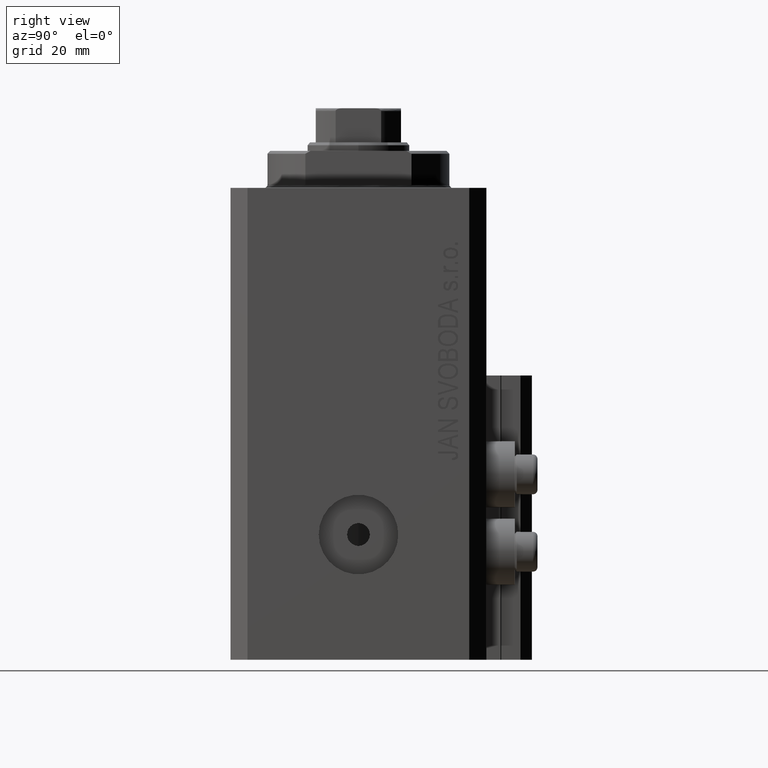
[diagram: clean part render]
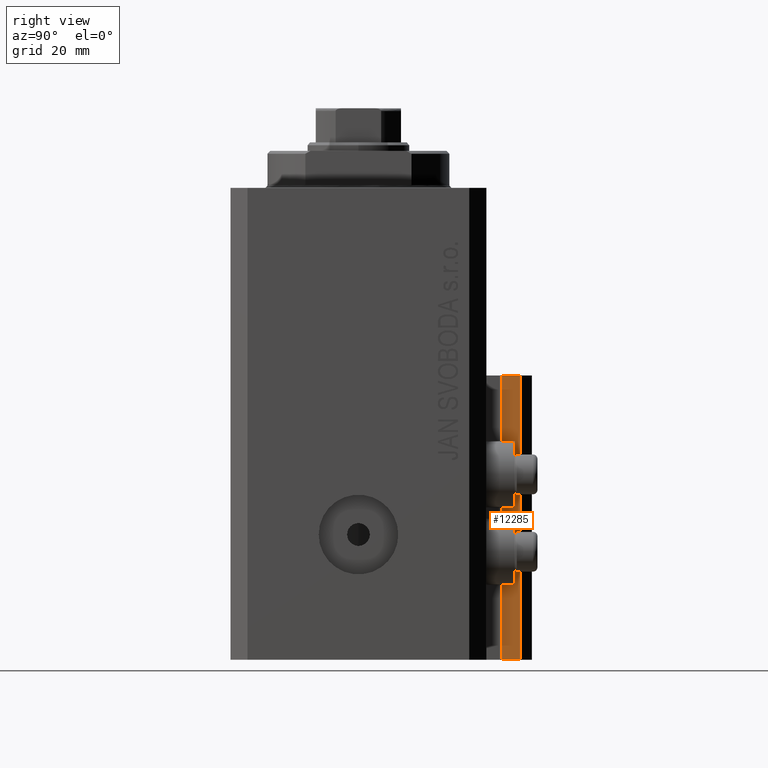
[diagram: same view with one face highlighted and labeled with its STEP entity id]
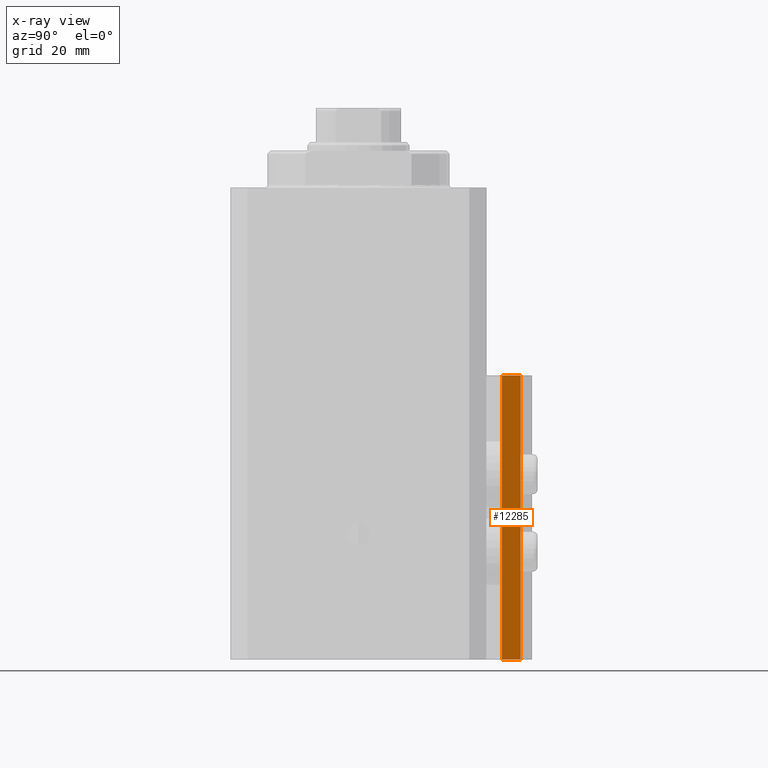
[diagram: x-ray of the same camera — body ghosted, the highlighted face saturated]
A machine part, right view. The second image highlights one B-rep face of the part: STEP entity #12285.
The next image is the same camera in x-ray: the body ghosted, the highlighted face saturated — about 0% of this face is hidden behind the body in this view.
In plain terms, the highlighted planar face has unit normal (1, 0, 0).
Its self-contained STEP definition (entity closure, byte-faithful):
#580 = DIRECTION ( 'NONE',  ( 0.000000000000000000, 0.000000000000000000, 1.000000000000000000 ) ) ;
#1770 = DIRECTION ( 'NONE',  ( 0.000000000000000000, 1.000000000000000000, 0.000000000000000000 ) ) ;
#2613 = CARTESIAN_POINT ( 'NONE',  ( 12.00000000000000355, 25.19999999999951257, -83.00000000000000000 ) ) ;
#7806 = CARTESIAN_POINT ( 'NONE',  ( 12.00000000000000355, 25.19999999999951257, -83.00000000000000000 ) ) ;
#10419 = ORIENTED_EDGE ( 'NONE', *, *, #44810, .F. ) ;
#12285 = ADVANCED_FACE ( 'NONE', ( #17420 ), #16735, .T. ) ;
#12314 = LINE ( 'NONE', #7806, #12978 ) ;
#12512 = LINE ( 'NONE', #34448, #24177 ) ;
#12931 = DIRECTION ( 'NONE',  ( 0.000000000000000000, 1.000000000000000000, 0.000000000000000000 ) ) ;
#12978 = VECTOR ( 'NONE', #25935, 1000.000000000000000 ) ;
#13099 = EDGE_CURVE ( 'NONE', #38044, #37650, #45380, .T. ) ;
#14787 = CARTESIAN_POINT ( 'NONE',  ( 12.00000000000000178, 28.49999999999950973, -83.00000000000000000 ) ) ;
#16235 = CARTESIAN_POINT ( 'NONE',  ( 12.00000000000000178, 28.49999999999950973, -33.00000000000000000 ) ) ;
#16735 = PLANE ( 'NONE',  #19327 ) ;
#17420 = FACE_OUTER_BOUND ( 'NONE', #21967, .T. ) ;
#17791 = VERTEX_POINT ( 'NONE', #2613 ) ;
#18713 = LINE ( 'NONE', #29460, #45496 ) ;
#19327 = AXIS2_PLACEMENT_3D ( 'NONE', #35094, #42032, #31989 ) ;
#20030 = EDGE_CURVE ( 'NONE', #27930, #37650, #18713, .T. ) ;
#20832 = EDGE_CURVE ( 'NONE', #17791, #27930, #12512, .T. ) ;
#21967 = EDGE_LOOP ( 'NONE', ( #40828, #10419, #45767, #36717 ) ) ;
#24177 = VECTOR ( 'NONE', #1770, 1000.000000000000000 ) ;
#25935 = DIRECTION ( 'NONE',  ( 0.000000000000000000, 0.000000000000000000, 1.000000000000000000 ) ) ;
#27497 = CARTESIAN_POINT ( 'NONE',  ( 12.00000000000000178, 25.19999999999951257, -33.00000000000000000 ) ) ;
#27930 = VERTEX_POINT ( 'NONE', #14787 ) ;
#29460 = CARTESIAN_POINT ( 'NONE',  ( 12.00000000000000178, 28.49999999999950973, -83.00000000000000000 ) ) ;
#31989 = DIRECTION ( 'NONE',  ( 0.000000000000000000, 0.000000000000000000, -1.000000000000000000 ) ) ;
#34448 = CARTESIAN_POINT ( 'NONE',  ( 12.00000000000000178, 25.19999999999951257, -83.00000000000000000 ) ) ;
#35094 = CARTESIAN_POINT ( 'NONE',  ( 12.00000000000000178, 25.19999999999951257, -83.00000000000000000 ) ) ;
#36717 = ORIENTED_EDGE ( 'NONE', *, *, #20030, .T. ) ;
#37650 = VERTEX_POINT ( 'NONE', #16235 ) ;
#38044 = VERTEX_POINT ( 'NONE', #46928 ) ;
#39889 = VECTOR ( 'NONE', #12931, 1000.000000000000000 ) ;
#40828 = ORIENTED_EDGE ( 'NONE', *, *, #13099, .F. ) ;
#42032 = DIRECTION ( 'NONE',  ( 1.000000000000000000, 0.000000000000000000, 0.000000000000000000 ) ) ;
#44810 = EDGE_CURVE ( 'NONE', #17791, #38044, #12314, .T. ) ;
#45380 = LINE ( 'NONE', #27497, #39889 ) ;
#45496 = VECTOR ( 'NONE', #580, 1000.000000000000000 ) ;
#45767 = ORIENTED_EDGE ( 'NONE', *, *, #20832, .T. ) ;
#46928 = CARTESIAN_POINT ( 'NONE',  ( 12.00000000000000355, 25.19999999999951257, -33.00000000000000000 ) ) ;